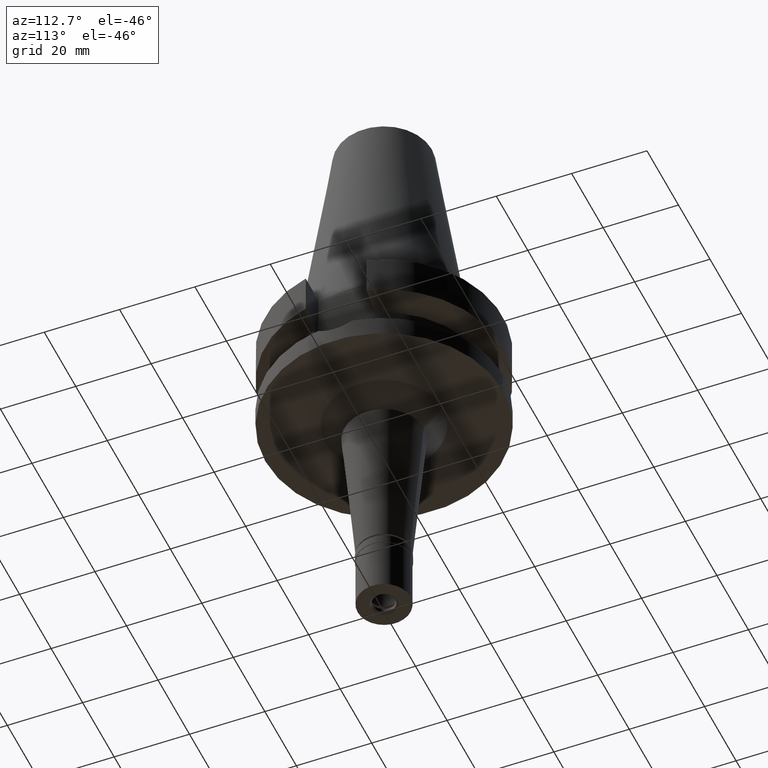
[diagram: clean part render]
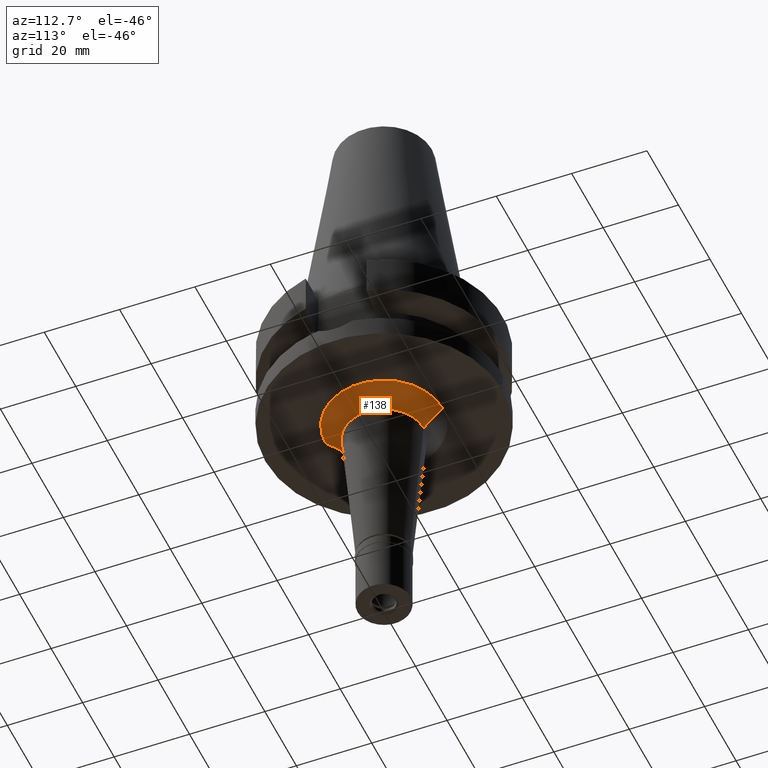
[diagram: same view with one face highlighted and labeled with its STEP entity id]
A machine part, auxiliary view. The second image highlights one B-rep face of the part: STEP entity #138.
In plain terms, the highlighted conical surface has half-angle 45 deg.
Its self-contained STEP definition (entity closure, byte-faithful):
#104 = CARTESIAN_POINT ( 'NONE',  ( 0.0000000000000000000, 0.0000000000000000000, -27.00000000000000000 ) ) ;
#138 = ADVANCED_FACE ( 'NONE', ( #987 ), #1046, .T. ) ;
#148 = EDGE_LOOP ( 'NONE', ( #388, #2788, #798, #2724 ) ) ;
#237 = VECTOR ( 'NONE', #1488, 1000.000000000000114 ) ;
#338 = EDGE_CURVE ( 'NONE', #1518, #1916, #2350, .T. ) ;
#388 = ORIENTED_EDGE ( 'NONE', *, *, #338, .T. ) ;
#436 = VERTEX_POINT ( 'NONE', #2792 ) ;
#534 = CARTESIAN_POINT ( 'NONE',  ( 0.0000000000000000000, 0.0000000000000000000, -32.00000000000000000 ) ) ;
#638 = EDGE_CURVE ( 'NONE', #436, #792, #1002, .T. ) ;
#780 = DIRECTION ( 'NONE',  ( 0.0000000000000000000, -1.000000000000000000, 0.0000000000000000000 ) ) ;
#792 = VERTEX_POINT ( 'NONE', #2875 ) ;
#798 = ORIENTED_EDGE ( 'NONE', *, *, #638, .T. ) ;
#835 = LINE ( 'NONE', #1742, #1359 ) ;
#869 = CARTESIAN_POINT ( 'NONE',  ( 0.0000000000000000000, -15.52579314009000022, -27.00000000000000000 ) ) ;
#898 = DIRECTION ( 'NONE',  ( 0.0000000000000000000, 0.0000000000000000000, -1.000000000000000000 ) ) ;
#922 = EDGE_CURVE ( 'NONE', #1518, #792, #2117, .T. ) ;
#946 = DIRECTION ( 'NONE',  ( 0.0000000000000000000, 0.0000000000000000000, 1.000000000000000000 ) ) ;
#987 = FACE_OUTER_BOUND ( 'NONE', #148, .T. ) ;
#1002 = CIRCLE ( 'NONE', #1642, 10.52579314008999845 ) ;
#1046 = CONICAL_SURFACE ( 'NONE', #2346, 13.02579314009000022, 0.7853981633972997312 ) ;
#1049 = AXIS2_PLACEMENT_3D ( 'NONE', #104, #898, #1478 ) ;
#1265 = DIRECTION ( 'NONE',  ( 0.0000000000000000000, 0.7071067811863974706, -0.7071067811866975639 ) ) ;
#1279 = DIRECTION ( 'NONE',  ( 0.0000000000000000000, 0.0000000000000000000, 1.000000000000000000 ) ) ;
#1359 = VECTOR ( 'NONE', #1265, 1000.000000000000114 ) ;
#1478 = DIRECTION ( 'NONE',  ( 0.0000000000000000000, 1.000000000000000000, 0.0000000000000000000 ) ) ;
#1488 = DIRECTION ( 'NONE',  ( 0.0000000000000000000, -0.7071067811863974706, -0.7071067811866975639 ) ) ;
#1501 = CARTESIAN_POINT ( 'NONE',  ( 0.0000000000000000000, 15.52579314009000022, -27.00000000000000000 ) ) ;
#1503 = EDGE_CURVE ( 'NONE', #1916, #436, #835, .T. ) ;
#1518 = VERTEX_POINT ( 'NONE', #1501 ) ;
#1642 = AXIS2_PLACEMENT_3D ( 'NONE', #534, #1279, #780 ) ;
#1672 = CARTESIAN_POINT ( 'NONE',  ( 0.0000000000000000000, 0.0000000000000000000, -29.50000000000000000 ) ) ;
#1742 = CARTESIAN_POINT ( 'NONE',  ( 0.0000000000000000000, -15.52579314009000022, -27.00000000000000000 ) ) ;
#1912 = DIRECTION ( 'NONE',  ( 0.0000000000000000000, 1.000000000000000000, 0.0000000000000000000 ) ) ;
#1916 = VERTEX_POINT ( 'NONE', #869 ) ;
#2117 = LINE ( 'NONE', #2145, #237 ) ;
#2145 = CARTESIAN_POINT ( 'NONE',  ( 0.0000000000000000000, 15.52579314009000022, -27.00000000000000000 ) ) ;
#2346 = AXIS2_PLACEMENT_3D ( 'NONE', #1672, #946, #1912 ) ;
#2350 = CIRCLE ( 'NONE', #1049, 15.52579314009000022 ) ;
#2724 = ORIENTED_EDGE ( 'NONE', *, *, #922, .F. ) ;
#2788 = ORIENTED_EDGE ( 'NONE', *, *, #1503, .T. ) ;
#2792 = CARTESIAN_POINT ( 'NONE',  ( 0.0000000000000000000, -10.52579314008999845, -32.00000000000000000 ) ) ;
#2875 = CARTESIAN_POINT ( 'NONE',  ( 0.0000000000000000000, 10.52579314008999845, -32.00000000000000000 ) ) ;